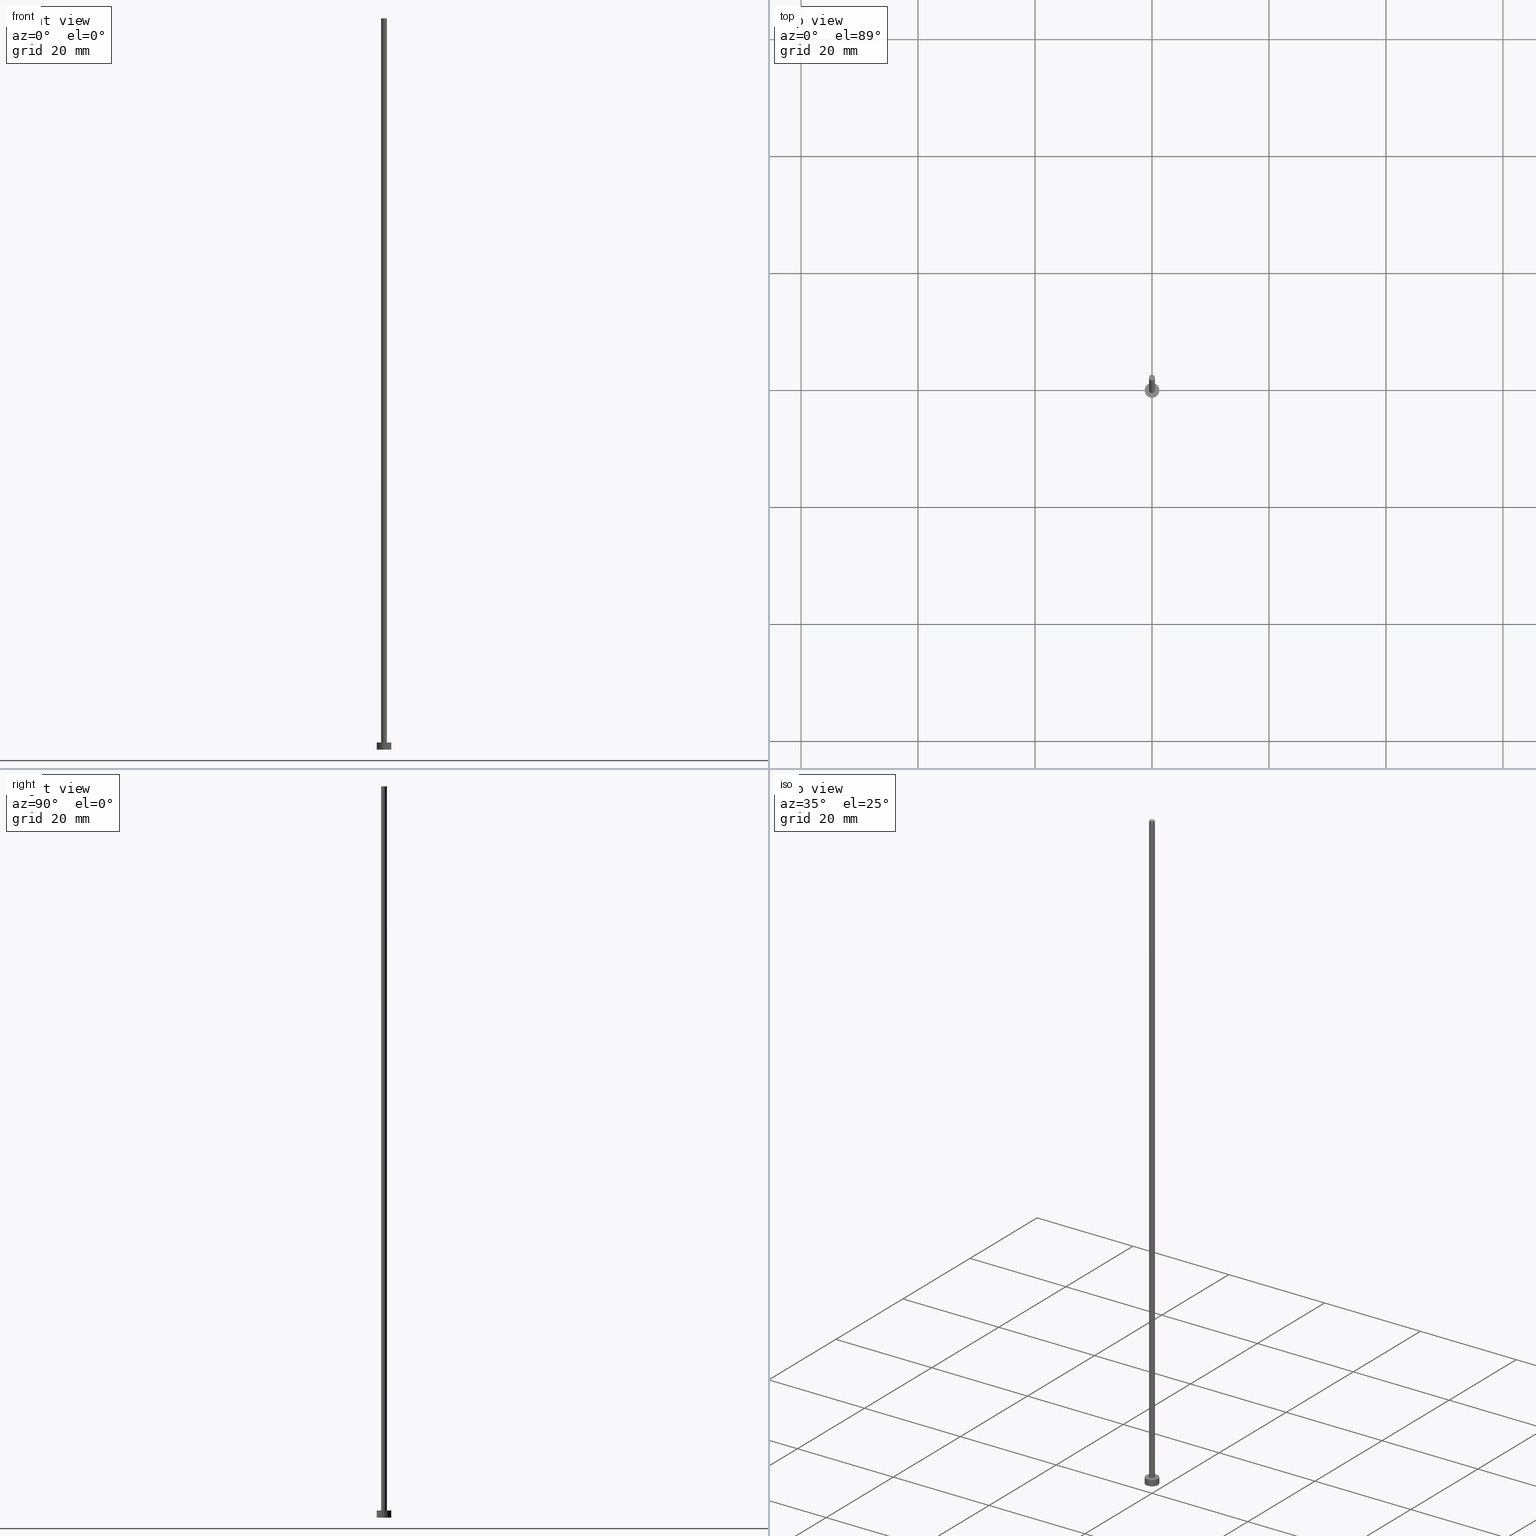
[diagram: canonical four-view strip — front | top / right | iso, engineering-drawing reading convention]
A machine part, canonical four-view strip (front | top / right | iso — engineering-drawing reading convention). The complete STEP part file that produces these views, byte-faithful:
ISO-10303-21;
HEADER;
FILE_DESCRIPTION (( 'STEP AP203' ),
    '1' );
FILE_NAME ('91e1.STEP',
    '2023-02-13T15:28:12',
    ( '' ),
    ( '' ),
    'SwSTEP 2.0',
    'SolidWorks 2019',
    '' );
FILE_SCHEMA (( 'CONFIG_CONTROL_DESIGN' ));
ENDSEC;

DATA;
#1 = APPROVAL_DATE_TIME ( #67, #62 ) ;
#2 = AXIS2_PLACEMENT_3D ( 'NONE', #123, #96, #106 ) ;
#3 = CIRCLE ( 'NONE', #225, 0.5000000000000000000 ) ;
#4 = DIRECTION ( 'NONE',  ( 1.000000000000000000, 0.000000000000000000, 0.000000000000000000 ) ) ;
#5 = ORIENTED_EDGE ( 'NONE', *, *, #149, .F. ) ;
#6 = ORIENTED_EDGE ( 'NONE', *, *, #81, .T. ) ;
#7 = EDGE_CURVE ( 'NONE', #156, #100, #15, .T. ) ;
#8 = CARTESIAN_POINT ( 'NONE',  ( -1.250000000000000000, 0.000000000000000000, 0.000000000000000000 ) ) ;
#9 = CARTESIAN_POINT ( 'NONE',  ( 0.000000000000000000, 0.000000000000000000, 0.000000000000000000 ) ) ;
#10 = EDGE_LOOP ( 'NONE', ( #197, #46 ) ) ;
#11 = LOCAL_TIME ( 16, 28, 12.00000000000000000, #190 ) ;
#12 = ORIENTED_EDGE ( 'NONE', *, *, #107, .T. ) ;
#13 = CARTESIAN_POINT ( 'NONE',  ( -0.5000000000000000000, 0.000000000000000000, 125.0000000000000000 ) ) ;
#14 = CC_DESIGN_DATE_AND_TIME_ASSIGNMENT ( #229, #198, ( #117 ) ) ;
#15 = CIRCLE ( 'NONE', #167, 0.5000000000000000000 ) ;
#16 = CC_DESIGN_APPROVAL ( #221, ( #60 ) ) ;
#17 = APPROVAL ( #59, 'NEUR�EN�' ) ;
#18 = UNCERTAINTY_MEASURE_WITH_UNIT (LENGTH_MEASURE( 1.000000000000000082E-05 ), #234, 'distance_accuracy_value', 'NONE');
#19 =( GEOMETRIC_REPRESENTATION_CONTEXT ( 3 ) GLOBAL_UNCERTAINTY_ASSIGNED_CONTEXT ( ( #18 ) ) GLOBAL_UNIT_ASSIGNED_CONTEXT ( ( #234, #212, #195 ) ) REPRESENTATION_CONTEXT ( 'NONE', 'WORKASPACE' ) );
#20 = DIRECTION ( 'NONE',  ( -0.000000000000000000, -0.000000000000000000, -1.000000000000000000 ) ) ;
#21 = DIRECTION ( 'NONE',  ( 1.000000000000000000, 0.000000000000000000, 0.000000000000000000 ) ) ;
#22 = PRODUCT_RELATED_PRODUCT_CATEGORY ( 'detail', '', ( #255 ) ) ;
#23 = COORDINATED_UNIVERSAL_TIME_OFFSET ( 1, 0, .AHEAD. ) ;
#24 = DIRECTION ( 'NONE',  ( 0.000000000000000000, 0.000000000000000000, 1.000000000000000000 ) ) ;
#25 = ORIENTED_EDGE ( 'NONE', *, *, #232, .F. ) ;
#26 = LOCAL_TIME ( 16, 28, 12.00000000000000000, #55 ) ;
#27 = APPROVAL_STATUS ( 'not_yet_approved' ) ;
#28 = DIRECTION ( 'NONE',  ( -0.000000000000000000, -0.000000000000000000, -1.000000000000000000 ) ) ;
#29 = DIRECTION ( 'NONE',  ( 1.000000000000000000, 0.000000000000000000, 0.000000000000000000 ) ) ;
#30 = DIRECTION ( 'NONE',  ( 1.000000000000000000, 0.000000000000000000, -0.000000000000000000 ) ) ;
#31 = EDGE_LOOP ( 'NONE', ( #74, #171, #254, #253 ) ) ;
#32 = DIRECTION ( 'NONE',  ( 0.000000000000000000, 0.000000000000000000, 1.000000000000000000 ) ) ;
#33 = AXIS2_PLACEMENT_3D ( 'NONE', #109, #43, #4 ) ;
#34 = APPROVAL_ROLE ( '' ) ;
#35 = ADVANCED_FACE ( 'NONE', ( #240 ), #153, .T. ) ;
#36 = APPROVAL_ROLE ( '' ) ;
#37 = DATE_AND_TIME ( #103, #56 ) ;
#38 = AXIS2_PLACEMENT_3D ( 'NONE', #71, #24, #233 ) ;
#39 = CC_DESIGN_PERSON_AND_ORGANIZATION_ASSIGNMENT ( #99, #76, ( #175 ) ) ;
#40 = LOCAL_TIME ( 16, 28, 12.00000000000000000, #23 ) ;
#41 = CARTESIAN_POINT ( 'NONE',  ( 0.000000000000000000, 0.000000000000000000, 0.000000000000000000 ) ) ;
#42 = FACE_OUTER_BOUND ( 'NONE', #121, .T. ) ;
#43 = DIRECTION ( 'NONE',  ( 0.000000000000000000, 0.000000000000000000, 1.000000000000000000 ) ) ;
#44 = CIRCLE ( 'NONE', #2, 1.250000000000000000 ) ;
#45 = CARTESIAN_POINT ( 'NONE',  ( 0.000000000000000000, 0.000000000000000000, 1.199999999999999956 ) ) ;
#46 = ORIENTED_EDGE ( 'NONE', *, *, #7, .T. ) ;
#47 = FACE_OUTER_BOUND ( 'NONE', #68, .T. ) ;
#48 = CARTESIAN_POINT ( 'NONE',  ( 0.000000000000000000, 0.000000000000000000, 1.199999999999999956 ) ) ;
#49 = EDGE_CURVE ( 'NONE', #100, #156, #102, .T. ) ;
#50 = VERTEX_POINT ( 'NONE', #172 ) ;
#51 = PERSON_AND_ORGANIZATION ( #127, #168 ) ;
#52 = ORIENTED_EDGE ( 'NONE', *, *, #181, .T. ) ;
#53 = ORIENTED_EDGE ( 'NONE', *, *, #112, .F. ) ;
#54 = AXIS2_PLACEMENT_3D ( 'NONE', #9, #201, #29 ) ;
#55 = COORDINATED_UNIVERSAL_TIME_OFFSET ( 1, 0, .AHEAD. ) ;
#56 = LOCAL_TIME ( 16, 28, 12.00000000000000000, #230 ) ;
#57 = CARTESIAN_POINT ( 'NONE',  ( 1.250000000000000000, 1.530808498934191571E-16, 1.199999999999999956 ) ) ;
#58 = ADVANCED_FACE ( 'NONE', ( #173, #75 ), #184, .T. ) ;
#59 = APPROVAL_STATUS ( 'not_yet_approved' ) ;
#60 = PRODUCT_DEFINITION_FORMATION_WITH_SPECIFIED_SOURCE ( 'LIBOVOLN�', '', #255, .NOT_KNOWN. ) ;
#61 = LINE ( 'NONE', #147, #185 ) ;
#62 = APPROVAL ( #27, 'NEUR�EN�' ) ;
#63 = LINE ( 'NONE', #150, #250 ) ;
#64 = EDGE_CURVE ( 'NONE', #215, #118, #235, .T. ) ;
#65 = CIRCLE ( 'NONE', #38, 0.5000000000000000000 ) ;
#66 = AXIS2_PLACEMENT_3D ( 'NONE', #194, #200, #21 ) ;
#67 = DATE_AND_TIME ( #89, #40 ) ;
#68 = EDGE_LOOP ( 'NONE', ( #204, #135, #249, #25 ) ) ;
#69 = DIRECTION ( 'NONE',  ( 0.000000000000000000, 0.000000000000000000, 1.000000000000000000 ) ) ;
#70 = CC_DESIGN_DATE_AND_TIME_ASSIGNMENT ( #205, #125, ( #175 ) ) ;
#71 = CARTESIAN_POINT ( 'NONE',  ( 0.000000000000000000, 0.000000000000000000, 1.199999999999999956 ) ) ;
#72 = LINE ( 'NONE', #77, #129 ) ;
#73 = LOCAL_TIME ( 16, 28, 12.00000000000000000, #143 ) ;
#74 = ORIENTED_EDGE ( 'NONE', *, *, #132, .F. ) ;
#75 = FACE_OUTER_BOUND ( 'NONE', #97, .T. ) ;
#76 = PERSON_AND_ORGANIZATION_ROLE ( 'classification_officer' ) ;
#77 = CARTESIAN_POINT ( 'NONE',  ( -1.250000000000000000, 0.000000000000000000, 1.199999999999999956 ) ) ;
#78 = ADVANCED_FACE ( 'NONE', ( #157 ), #227, .T. ) ;
#79 = CALENDAR_DATE ( 2023, 13, 2 ) ;
#80 = CC_DESIGN_APPROVAL ( #62, ( #117 ) ) ;
#81 = EDGE_CURVE ( 'NONE', #84, #118, #72, .T. ) ;
#82 = PLANE ( 'NONE',  #108 ) ;
#83 = CC_DESIGN_PERSON_AND_ORGANIZATION_ASSIGNMENT ( #191, #248, ( #60 ) ) ;
#84 = VERTEX_POINT ( 'NONE', #159 ) ;
#85 = DIRECTION ( 'NONE',  ( -0.000000000000000000, -0.000000000000000000, -1.000000000000000000 ) ) ;
#86 = PERSON_AND_ORGANIZATION_ROLE ( 'creator' ) ;
#87 = ADVANCED_BREP_SHAPE_REPRESENTATION ( '91e1', ( #131, #33 ), #19 ) ;
#88 = CC_DESIGN_PERSON_AND_ORGANIZATION_ASSIGNMENT ( #51, #220, ( #60 ) ) ;
#89 = CALENDAR_DATE ( 2023, 13, 2 ) ;
#90 = AXIS2_PLACEMENT_3D ( 'NONE', #105, #85, #165 ) ;
#91 = APPLICATION_PROTOCOL_DEFINITION ( 'international standard', 'config_control_design', 1994, #241 ) ;
#92 = DIRECTION ( 'NONE',  ( -0.000000000000000000, -0.000000000000000000, -1.000000000000000000 ) ) ;
#93 = CARTESIAN_POINT ( 'NONE',  ( 0.000000000000000000, 0.000000000000000000, 125.0000000000000000 ) ) ;
#94 = CYLINDRICAL_SURFACE ( 'NONE', #145, 0.5000000000000000000 ) ;
#95 = DIRECTION ( 'NONE',  ( -0.000000000000000000, -0.000000000000000000, -1.000000000000000000 ) ) ;
#96 = DIRECTION ( 'NONE',  ( 0.000000000000000000, 0.000000000000000000, 1.000000000000000000 ) ) ;
#97 = EDGE_LOOP ( 'NONE', ( #52, #203 ) ) ;
#98 = DIRECTION ( 'NONE',  ( 0.000000000000000000, 0.000000000000000000, 1.000000000000000000 ) ) ;
#99 = PERSON_AND_ORGANIZATION ( #127, #168 ) ;
#100 = VERTEX_POINT ( 'NONE', #13 ) ;
#101 = LINE ( 'NONE', #57, #154 ) ;
#102 = CIRCLE ( 'NONE', #178, 0.5000000000000000000 ) ;
#103 = CALENDAR_DATE ( 2023, 13, 2 ) ;
#104 = DIRECTION ( 'NONE',  ( -0.000000000000000000, -0.000000000000000000, -1.000000000000000000 ) ) ;
#105 = CARTESIAN_POINT ( 'NONE',  ( 0.000000000000000000, 0.000000000000000000, 1.199999999999999956 ) ) ;
#106 = DIRECTION ( 'NONE',  ( 1.000000000000000000, 0.000000000000000000, 0.000000000000000000 ) ) ;
#107 = EDGE_CURVE ( 'NONE', #111, #215, #101, .T. ) ;
#108 = AXIS2_PLACEMENT_3D ( 'NONE', #41, #152, #130 ) ;
#109 = CARTESIAN_POINT ( 'NONE',  ( 0.000000000000000000, 0.000000000000000000, 0.000000000000000000 ) ) ;
#110 = PRODUCT_DEFINITION_SHAPE ( 'NONE', 'NONE',  #117 ) ;
#111 = VERTEX_POINT ( 'NONE', #189 ) ;
#112 = EDGE_CURVE ( 'NONE', #118, #215, #44, .T. ) ;
#113 = APPROVAL_ROLE ( '' ) ;
#114 = CYLINDRICAL_SURFACE ( 'NONE', #90, 1.250000000000000000 ) ;
#115 = ORIENTED_EDGE ( 'NONE', *, *, #188, .F. ) ;
#116 = CARTESIAN_POINT ( 'NONE',  ( 0.000000000000000000, 0.000000000000000000, 125.0000000000000000 ) ) ;
#117 = PRODUCT_DEFINITION ( 'NEZN�M�', '', #60, #163 ) ;
#118 = VERTEX_POINT ( 'NONE', #8 ) ;
#119 = SECURITY_CLASSIFICATION_LEVEL ( 'unclassified' ) ;
#120 = APPROVAL_PERSON_ORGANIZATION ( #160, #17, #34 ) ;
#121 = EDGE_LOOP ( 'NONE', ( #141, #138, #6, #224 ) ) ;
#122 = CALENDAR_DATE ( 2023, 13, 2 ) ;
#123 = CARTESIAN_POINT ( 'NONE',  ( 0.000000000000000000, 0.000000000000000000, 0.000000000000000000 ) ) ;
#124 = EDGE_CURVE ( 'NONE', #50, #151, #65, .T. ) ;
#125 = DATE_TIME_ROLE ( 'classification_date' ) ;
#126 = SHAPE_DEFINITION_REPRESENTATION ( #110, #87 ) ;
#127 = PERSON ( 'NEUR�EN�', 'NEUR�EN�', 'NEUR�EN�', ('NEUR�EN�'), ('NEUR�EN�'), ('NEUR�EN�') ) ;
#128 = APPROVAL_DATE_TIME ( #161, #221 ) ;
#129 = VECTOR ( 'NONE', #206, 1000.000000000000000 ) ;
#130 = DIRECTION ( 'NONE',  ( 1.000000000000000000, 0.000000000000000000, -0.000000000000000000 ) ) ;
#131 = MANIFOLD_SOLID_BREP ( 'P�idat vysunut�m3', #133 ) ;
#132 = EDGE_CURVE ( 'NONE', #156, #50, #61, .T. ) ;
#133 = CLOSED_SHELL ( 'NONE', ( #176, #238, #193, #58, #139, #78, #35 ) ) ;
#134 = PERSON_AND_ORGANIZATION_ROLE ( 'design_owner' ) ;
#135 = ORIENTED_EDGE ( 'NONE', *, *, #132, .T. ) ;
#136 = DIRECTION ( 'NONE',  ( -1.000000000000000000, 0.000000000000000000, 0.000000000000000000 ) ) ;
#137 = DIRECTION ( 'NONE',  ( 1.000000000000000000, 0.000000000000000000, -0.000000000000000000 ) ) ;
#138 = ORIENTED_EDGE ( 'NONE', *, *, #181, .F. ) ;
#139 = ADVANCED_FACE ( 'NONE', ( #223 ), #82, .F. ) ;
#140 = EDGE_LOOP ( 'NONE', ( #53, #219 ) ) ;
#141 = ORIENTED_EDGE ( 'NONE', *, *, #107, .F. ) ;
#142 = DIRECTION ( 'NONE',  ( -0.000000000000000000, -0.000000000000000000, -1.000000000000000000 ) ) ;
#143 = COORDINATED_UNIVERSAL_TIME_OFFSET ( 1, 0, .AHEAD. ) ;
#144 = AXIS2_PLACEMENT_3D ( 'NONE', #183, #95, #243 ) ;
#145 = AXIS2_PLACEMENT_3D ( 'NONE', #242, #92, #136 ) ;
#146 = AXIS2_PLACEMENT_3D ( 'NONE', #252, #104, #179 ) ;
#147 = CARTESIAN_POINT ( 'NONE',  ( 0.5000000000000000000, 6.123233995736766036E-17, 125.0000000000000000 ) ) ;
#148 = DIRECTION ( 'NONE',  ( 1.000000000000000000, 0.000000000000000000, 0.000000000000000000 ) ) ;
#149 = EDGE_CURVE ( 'NONE', #111, #84, #244, .T. ) ;
#150 = CARTESIAN_POINT ( 'NONE',  ( -0.5000000000000000000, 0.000000000000000000, 125.0000000000000000 ) ) ;
#151 = VERTEX_POINT ( 'NONE', #211 ) ;
#152 = DIRECTION ( 'NONE',  ( 0.000000000000000000, 0.000000000000000000, 1.000000000000000000 ) ) ;
#153 = PLANE ( 'NONE',  #208 ) ;
#154 = VECTOR ( 'NONE', #142, 1000.000000000000000 ) ;
#155 = ORIENTED_EDGE ( 'NONE', *, *, #124, .F. ) ;
#156 = VERTEX_POINT ( 'NONE', #239 ) ;
#157 = FACE_OUTER_BOUND ( 'NONE', #31, .T. ) ;
#158 = CALENDAR_DATE ( 2023, 13, 2 ) ;
#159 = CARTESIAN_POINT ( 'NONE',  ( -1.250000000000000000, 0.000000000000000000, 1.199999999999999956 ) ) ;
#160 = PERSON_AND_ORGANIZATION ( #127, #168 ) ;
#161 = DATE_AND_TIME ( #79, #73 ) ;
#162 = CC_DESIGN_PERSON_AND_ORGANIZATION_ASSIGNMENT ( #180, #134, ( #255 ) ) ;
#163 = DESIGN_CONTEXT ( 'detailed design', #241, 'design' ) ;
#164 = AXIS2_PLACEMENT_3D ( 'NONE', #48, #32, #137 ) ;
#165 = DIRECTION ( 'NONE',  ( -1.000000000000000000, 0.000000000000000000, 0.000000000000000000 ) ) ;
#166 = EDGE_LOOP ( 'NONE', ( #115, #155 ) ) ;
#167 = AXIS2_PLACEMENT_3D ( 'NONE', #93, #98, #170 ) ;
#168 = ORGANIZATION ( 'NEUR�EN�', 'NEUR�EN�', '' ) ;
#169 = DIRECTION ( 'NONE',  ( 0.000000000000000000, 0.000000000000000000, 1.000000000000000000 ) ) ;
#170 = DIRECTION ( 'NONE',  ( 1.000000000000000000, 0.000000000000000000, 0.000000000000000000 ) ) ;
#171 = ORIENTED_EDGE ( 'NONE', *, *, #49, .F. ) ;
#172 = CARTESIAN_POINT ( 'NONE',  ( 0.5000000000000000000, 6.123233995736766036E-17, 1.199999999999999956 ) ) ;
#173 = FACE_BOUND ( 'NONE', #166, .T. ) ;
#174 = EDGE_LOOP ( 'NONE', ( #5, #12, #187, #202 ) ) ;
#175 = SECURITY_CLASSIFICATION ( '', '', #119 ) ;
#176 = ADVANCED_FACE ( 'NONE', ( #47 ), #94, .T. ) ;
#177 = CYLINDRICAL_SURFACE ( 'NONE', #146, 1.250000000000000000 ) ;
#178 = AXIS2_PLACEMENT_3D ( 'NONE', #222, #246, #186 ) ;
#179 = DIRECTION ( 'NONE',  ( -1.000000000000000000, 0.000000000000000000, 0.000000000000000000 ) ) ;
#180 = PERSON_AND_ORGANIZATION ( #127, #168 ) ;
#181 = EDGE_CURVE ( 'NONE', #84, #111, #245, .T. ) ;
#182 = DIRECTION ( 'NONE',  ( 0.000000000000000000, 0.000000000000000000, 1.000000000000000000 ) ) ;
#183 = CARTESIAN_POINT ( 'NONE',  ( 0.000000000000000000, 0.000000000000000000, 125.0000000000000000 ) ) ;
#184 = PLANE ( 'NONE',  #164 ) ;
#185 = VECTOR ( 'NONE', #28, 1000.000000000000000 ) ;
#186 = DIRECTION ( 'NONE',  ( 1.000000000000000000, 0.000000000000000000, 0.000000000000000000 ) ) ;
#187 = ORIENTED_EDGE ( 'NONE', *, *, #64, .T. ) ;
#188 = EDGE_CURVE ( 'NONE', #151, #50, #3, .T. ) ;
#189 = CARTESIAN_POINT ( 'NONE',  ( 1.250000000000000000, 1.530808498934191571E-16, 1.199999999999999956 ) ) ;
#190 = COORDINATED_UNIVERSAL_TIME_OFFSET ( 1, 0, .AHEAD. ) ;
#191 = PERSON_AND_ORGANIZATION ( #127, #168 ) ;
#192 = CC_DESIGN_SECURITY_CLASSIFICATION ( #175, ( #60 ) ) ;
#193 = ADVANCED_FACE ( 'NONE', ( #42 ), #114, .T. ) ;
#194 = CARTESIAN_POINT ( 'NONE',  ( 0.000000000000000000, 0.000000000000000000, 1.199999999999999956 ) ) ;
#195 =( NAMED_UNIT ( * ) SI_UNIT ( $, .STERADIAN. ) SOLID_ANGLE_UNIT ( ) );
#196 = APPLICATION_PROTOCOL_DEFINITION ( 'international standard', 'config_control_design', 1994, #213 ) ;
#197 = ORIENTED_EDGE ( 'NONE', *, *, #49, .T. ) ;
#198 = DATE_TIME_ROLE ( 'creation_date' ) ;
#199 = MECHANICAL_CONTEXT ( 'NONE', #213, 'mechanical' ) ;
#200 = DIRECTION ( 'NONE',  ( 0.000000000000000000, 0.000000000000000000, 1.000000000000000000 ) ) ;
#201 = DIRECTION ( 'NONE',  ( 0.000000000000000000, 0.000000000000000000, 1.000000000000000000 ) ) ;
#202 = ORIENTED_EDGE ( 'NONE', *, *, #81, .F. ) ;
#203 = ORIENTED_EDGE ( 'NONE', *, *, #149, .T. ) ;
#204 = ORIENTED_EDGE ( 'NONE', *, *, #7, .F. ) ;
#205 = DATE_AND_TIME ( #158, #11 ) ;
#206 = DIRECTION ( 'NONE',  ( -0.000000000000000000, -0.000000000000000000, -1.000000000000000000 ) ) ;
#207 = APPROVAL_STATUS ( 'not_yet_approved' ) ;
#208 = AXIS2_PLACEMENT_3D ( 'NONE', #116, #69, #30 ) ;
#209 = APPROVAL_DATE_TIME ( #37, #17 ) ;
#210 = AXIS2_PLACEMENT_3D ( 'NONE', #218, #169, #148 ) ;
#211 = CARTESIAN_POINT ( 'NONE',  ( -0.5000000000000000000, 0.000000000000000000, 1.199999999999999956 ) ) ;
#212 =( NAMED_UNIT ( * ) PLANE_ANGLE_UNIT ( ) SI_UNIT ( $, .RADIAN. ) );
#213 = APPLICATION_CONTEXT ( 'configuration controlled 3d designs of mechanical parts and assemblies' ) ;
#214 = DIRECTION ( 'NONE',  ( 1.000000000000000000, 0.000000000000000000, 0.000000000000000000 ) ) ;
#215 = VERTEX_POINT ( 'NONE', #236 ) ;
#216 = APPROVAL_PERSON_ORGANIZATION ( #251, #221, #36 ) ;
#217 = PERSON_AND_ORGANIZATION ( #127, #168 ) ;
#218 = CARTESIAN_POINT ( 'NONE',  ( 0.000000000000000000, 0.000000000000000000, 1.199999999999999956 ) ) ;
#219 = ORIENTED_EDGE ( 'NONE', *, *, #64, .F. ) ;
#220 = PERSON_AND_ORGANIZATION_ROLE ( 'design_supplier' ) ;
#221 = APPROVAL ( #207, 'NEUR�EN�' ) ;
#222 = CARTESIAN_POINT ( 'NONE',  ( 0.000000000000000000, 0.000000000000000000, 125.0000000000000000 ) ) ;
#223 = FACE_OUTER_BOUND ( 'NONE', #140, .T. ) ;
#224 = ORIENTED_EDGE ( 'NONE', *, *, #112, .T. ) ;
#225 = AXIS2_PLACEMENT_3D ( 'NONE', #45, #182, #214 ) ;
#226 = CC_DESIGN_PERSON_AND_ORGANIZATION_ASSIGNMENT ( #217, #86, ( #117 ) ) ;
#227 = CYLINDRICAL_SURFACE ( 'NONE', #144, 0.5000000000000000000 ) ;
#228 = APPROVAL_PERSON_ORGANIZATION ( #237, #62, #113 ) ;
#229 = DATE_AND_TIME ( #122, #26 ) ;
#230 = COORDINATED_UNIVERSAL_TIME_OFFSET ( 1, 0, .AHEAD. ) ;
#231 = FACE_OUTER_BOUND ( 'NONE', #174, .T. ) ;
#232 = EDGE_CURVE ( 'NONE', #100, #151, #63, .T. ) ;
#233 = DIRECTION ( 'NONE',  ( 1.000000000000000000, 0.000000000000000000, 0.000000000000000000 ) ) ;
#234 =( LENGTH_UNIT ( ) NAMED_UNIT ( * ) SI_UNIT ( .MILLI., .METRE. ) );
#235 = CIRCLE ( 'NONE', #54, 1.250000000000000000 ) ;
#236 = CARTESIAN_POINT ( 'NONE',  ( 1.250000000000000000, 1.530808498934191571E-16, 0.000000000000000000 ) ) ;
#237 = PERSON_AND_ORGANIZATION ( #127, #168 ) ;
#238 = ADVANCED_FACE ( 'NONE', ( #231 ), #177, .T. ) ;
#239 = CARTESIAN_POINT ( 'NONE',  ( 0.5000000000000000000, 6.123233995736766036E-17, 125.0000000000000000 ) ) ;
#240 = FACE_OUTER_BOUND ( 'NONE', #10, .T. ) ;
#241 = APPLICATION_CONTEXT ( 'configuration controlled 3d designs of mechanical parts and assemblies' ) ;
#242 = CARTESIAN_POINT ( 'NONE',  ( 0.000000000000000000, 0.000000000000000000, 125.0000000000000000 ) ) ;
#243 = DIRECTION ( 'NONE',  ( -1.000000000000000000, 0.000000000000000000, 0.000000000000000000 ) ) ;
#244 = CIRCLE ( 'NONE', #210, 1.250000000000000000 ) ;
#245 = CIRCLE ( 'NONE', #66, 1.250000000000000000 ) ;
#246 = DIRECTION ( 'NONE',  ( 0.000000000000000000, 0.000000000000000000, 1.000000000000000000 ) ) ;
#247 = CC_DESIGN_APPROVAL ( #17, ( #175 ) ) ;
#248 = PERSON_AND_ORGANIZATION_ROLE ( 'creator' ) ;
#249 = ORIENTED_EDGE ( 'NONE', *, *, #124, .T. ) ;
#250 = VECTOR ( 'NONE', #20, 1000.000000000000000 ) ;
#251 = PERSON_AND_ORGANIZATION ( #127, #168 ) ;
#252 = CARTESIAN_POINT ( 'NONE',  ( 0.000000000000000000, 0.000000000000000000, 1.199999999999999956 ) ) ;
#253 = ORIENTED_EDGE ( 'NONE', *, *, #188, .T. ) ;
#254 = ORIENTED_EDGE ( 'NONE', *, *, #232, .T. ) ;
#255 = PRODUCT ( '91e1', '91e1', '', ( #199 ) ) ;
ENDSEC;
END-ISO-10303-21;
